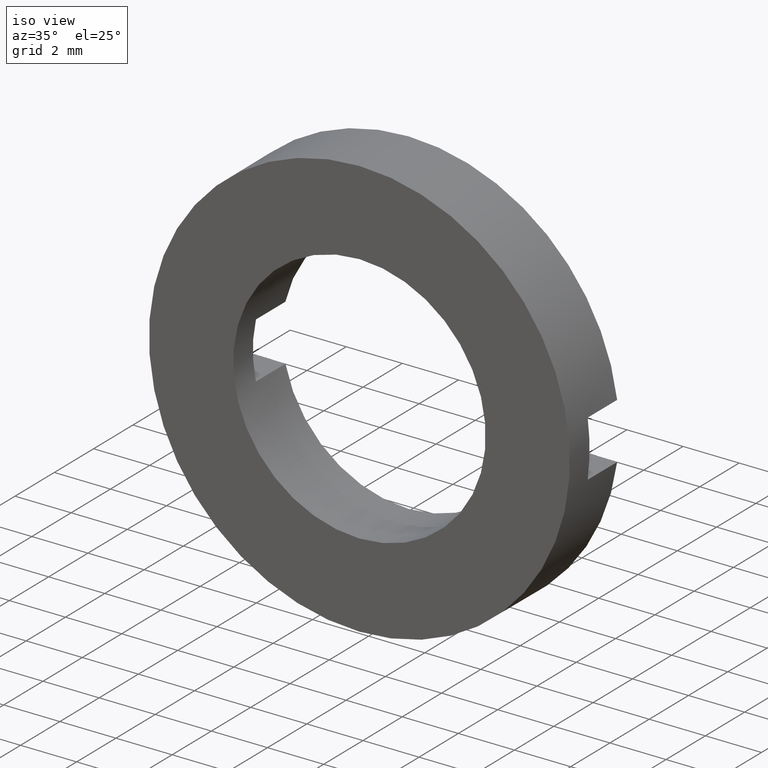
[diagram: clean part render]
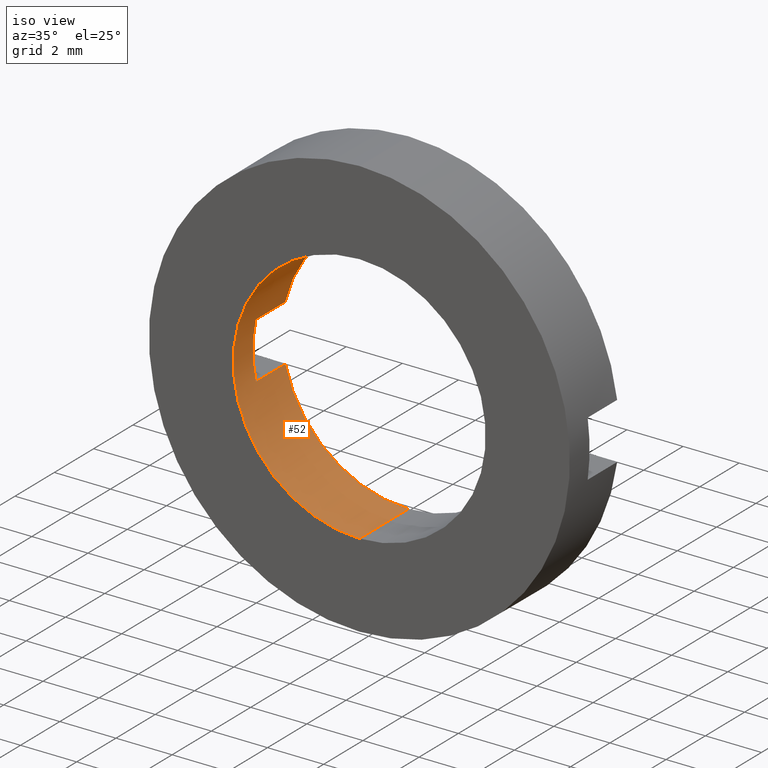
[diagram: same view with one face highlighted and labeled with its STEP entity id]
A machine part, iso view. The second image highlights one B-rep face of the part: STEP entity #52.
In plain terms, the highlighted cylindrical surface (partial cylindrical patch) has radius 4.5 mm, axis along (-0, 1, -0).
Its self-contained STEP definition (entity closure, byte-faithful):
#8 = VERTEX_POINT ( 'NONE', #528 ) ;
#11 = VERTEX_POINT ( 'NONE', #164 ) ;
#28 = EDGE_CURVE ( 'NONE', #11, #193, #283, .T. ) ;
#30 = DIRECTION ( 'NONE',  ( -0.0000000000000000000, 1.000000000000000000, -0.0000000000000000000 ) ) ;
#39 = AXIS2_PLACEMENT_3D ( 'NONE', #365, #49, #279 ) ;
#49 = DIRECTION ( 'NONE',  ( -0.0000000000000000000, 1.000000000000000000, -0.0000000000000000000 ) ) ;
#52 = ADVANCED_FACE ( 'NONE', ( #105 ), #325, .F. ) ;
#63 = LINE ( 'NONE', #176, #201 ) ;
#64 = CARTESIAN_POINT ( 'NONE',  ( 5.510910596163098400E-016, -4.464249787179428900, -4.500000000000007100 ) ) ;
#77 = VECTOR ( 'NONE', #242, 1000.000000000000000 ) ;
#83 = CARTESIAN_POINT ( 'NONE',  ( 0.0000000000000000000, -1.964249787179434000, 4.500000000000007100 ) ) ;
#86 = EDGE_CURVE ( 'NONE', #8, #11, #270, .T. ) ;
#91 = EDGE_CURVE ( 'NONE', #8, #455, #527, .T. ) ;
#92 = DIRECTION ( 'NONE',  ( -0.0000000000000000000, 1.000000000000000000, -0.0000000000000000000 ) ) ;
#98 = VERTEX_POINT ( 'NONE', #484 ) ;
#102 = ORIENTED_EDGE ( 'NONE', *, *, #28, .T. ) ;
#105 = FACE_OUTER_BOUND ( 'NONE', #226, .T. ) ;
#110 = EDGE_CURVE ( 'NONE', #285, #455, #63, .T. ) ;
#120 = ORIENTED_EDGE ( 'NONE', *, *, #287, .F. ) ;
#122 = ORIENTED_EDGE ( 'NONE', *, *, #237, .T. ) ;
#133 = DIRECTION ( 'NONE',  ( 0.0000000000000000000, 0.0000000000000000000, 1.000000000000000000 ) ) ;
#138 = DIRECTION ( 'NONE',  ( -0.0000000000000000000, 1.000000000000000000, -0.0000000000000000000 ) ) ;
#156 = CARTESIAN_POINT ( 'NONE',  ( 0.0000000000000000000, 56.26084262701361600, 0.0000000000000000000 ) ) ;
#164 = CARTESIAN_POINT ( 'NONE',  ( -4.387482193696067500, -1.964249787179434000, 0.9999999999999995600 ) ) ;
#167 = VECTOR ( 'NONE', #271, 1000.000000000000000 ) ;
#174 = CARTESIAN_POINT ( 'NONE',  ( 0.0000000000000000000, -3.464249787179428400, 0.0000000000000000000 ) ) ;
#176 = CARTESIAN_POINT ( 'NONE',  ( -4.387482193696068400, 56.26084262701361600, -1.000000000000000000 ) ) ;
#177 = ORIENTED_EDGE ( 'NONE', *, *, #243, .F. ) ;
#192 = CARTESIAN_POINT ( 'NONE',  ( 5.510910596163098400E-016, 56.26084262701361600, -4.500000000000007100 ) ) ;
#193 = VERTEX_POINT ( 'NONE', #83 ) ;
#201 = VECTOR ( 'NONE', #261, 1000.000000000000000 ) ;
#226 = EDGE_LOOP ( 'NONE', ( #120, #360, #122, #494, #404, #421, #102, #177 ) ) ;
#231 = CARTESIAN_POINT ( 'NONE',  ( -4.387482193696067500, -1.964249787179434000, -0.9999999999999995600 ) ) ;
#233 = DIRECTION ( 'NONE',  ( 0.0000000000000000000, 0.0000000000000000000, 1.000000000000000000 ) ) ;
#237 = EDGE_CURVE ( 'NONE', #98, #285, #303, .T. ) ;
#242 = DIRECTION ( 'NONE',  ( -0.0000000000000000000, 1.000000000000000000, -0.0000000000000000000 ) ) ;
#243 = EDGE_CURVE ( 'NONE', #554, #193, #559, .T. ) ;
#261 = DIRECTION ( 'NONE',  ( 0.0000000000000000000, -1.000000000000000000, 0.0000000000000000000 ) ) ;
#270 = LINE ( 'NONE', #353, #167 ) ;
#271 = DIRECTION ( 'NONE',  ( -0.0000000000000000000, 1.000000000000000000, -0.0000000000000000000 ) ) ;
#278 = CARTESIAN_POINT ( 'NONE',  ( 0.0000000000000000000, 56.26084262701361600, 4.500000000000007100 ) ) ;
#279 = DIRECTION ( 'NONE',  ( 0.0000000000000000000, 0.0000000000000000000, 1.000000000000000000 ) ) ;
#283 = CIRCLE ( 'NONE', #413, 4.500000000000007100 ) ;
#285 = VERTEX_POINT ( 'NONE', #231 ) ;
#287 = EDGE_CURVE ( 'NONE', #519, #554, #405, .T. ) ;
#301 = CARTESIAN_POINT ( 'NONE',  ( 0.0000000000000000000, -1.964249787179434000, 0.0000000000000000000 ) ) ;
#303 = CIRCLE ( 'NONE', #480, 4.500000000000007100 ) ;
#307 = DIRECTION ( 'NONE',  ( -0.0000000000000000000, 1.000000000000000000, -0.0000000000000000000 ) ) ;
#325 = CYLINDRICAL_SURFACE ( 'NONE', #499, 4.500000000000007100 ) ;
#329 = EDGE_CURVE ( 'NONE', #519, #98, #436, .T. ) ;
#335 = VECTOR ( 'NONE', #138, 1000.000000000000000 ) ;
#349 = CARTESIAN_POINT ( 'NONE',  ( 0.0000000000000000000, -4.464249787179428900, 4.500000000000007100 ) ) ;
#353 = CARTESIAN_POINT ( 'NONE',  ( -4.387482193696068400, 56.26084262701361600, 1.000000000000000000 ) ) ;
#360 = ORIENTED_EDGE ( 'NONE', *, *, #329, .T. ) ;
#365 = CARTESIAN_POINT ( 'NONE',  ( 0.0000000000000000000, -4.464249787179428900, 0.0000000000000000000 ) ) ;
#404 = ORIENTED_EDGE ( 'NONE', *, *, #91, .F. ) ;
#405 = CIRCLE ( 'NONE', #39, 4.500000000000007100 ) ;
#413 = AXIS2_PLACEMENT_3D ( 'NONE', #301, #307, #518 ) ;
#421 = ORIENTED_EDGE ( 'NONE', *, *, #86, .T. ) ;
#423 = CARTESIAN_POINT ( 'NONE',  ( -4.387482193696067500, -3.464249787179428400, -0.9999999999999995600 ) ) ;
#436 = LINE ( 'NONE', #192, #77 ) ;
#440 = DIRECTION ( 'NONE',  ( -0.0000000000000000000, -1.000000000000000000, -0.0000000000000000000 ) ) ;
#450 = AXIS2_PLACEMENT_3D ( 'NONE', #174, #440, #133 ) ;
#454 = CARTESIAN_POINT ( 'NONE',  ( 0.0000000000000000000, -1.964249787179434000, 0.0000000000000000000 ) ) ;
#455 = VERTEX_POINT ( 'NONE', #423 ) ;
#480 = AXIS2_PLACEMENT_3D ( 'NONE', #454, #92, #233 ) ;
#484 = CARTESIAN_POINT ( 'NONE',  ( 5.510910596163098400E-016, -1.964249787179434000, -4.500000000000007100 ) ) ;
#494 = ORIENTED_EDGE ( 'NONE', *, *, #110, .T. ) ;
#499 = AXIS2_PLACEMENT_3D ( 'NONE', #156, #30, #568 ) ;
#518 = DIRECTION ( 'NONE',  ( 0.0000000000000000000, 0.0000000000000000000, 1.000000000000000000 ) ) ;
#519 = VERTEX_POINT ( 'NONE', #64 ) ;
#527 = CIRCLE ( 'NONE', #450, 4.500000000000007100 ) ;
#528 = CARTESIAN_POINT ( 'NONE',  ( -4.387482193696067500, -3.464249787179428400, 0.9999999999999995600 ) ) ;
#554 = VERTEX_POINT ( 'NONE', #349 ) ;
#559 = LINE ( 'NONE', #278, #335 ) ;
#568 = DIRECTION ( 'NONE',  ( 0.0000000000000000000, 0.0000000000000000000, 1.000000000000000000 ) ) ;